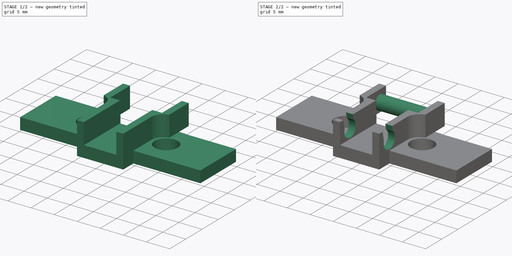
[diagram: build sequence overview — one tinted view per stage of 2, left to right]
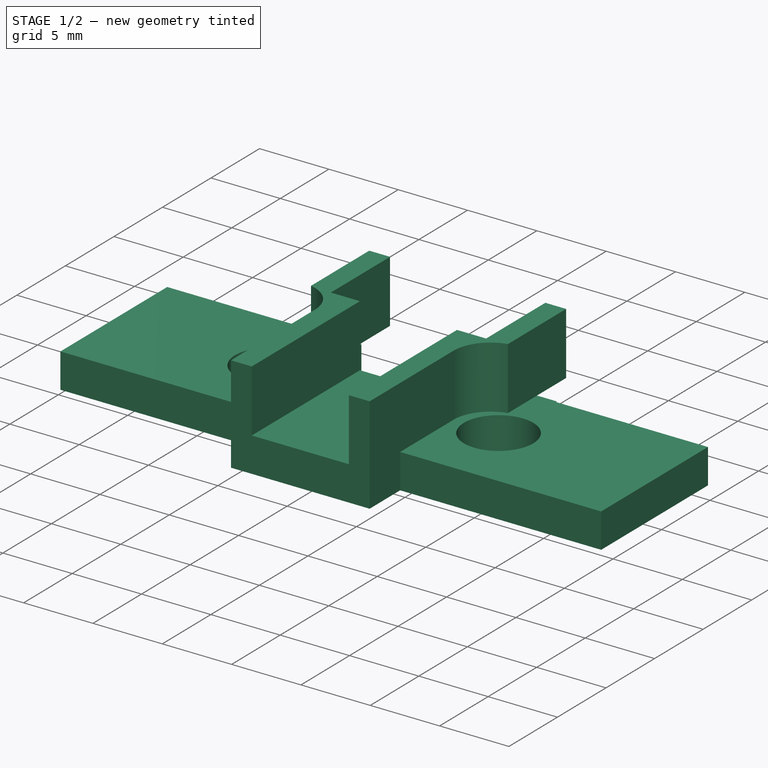
[diagram: stage 1 of 2 — iso view after this stage's code; geometry added in this stage tinted green]
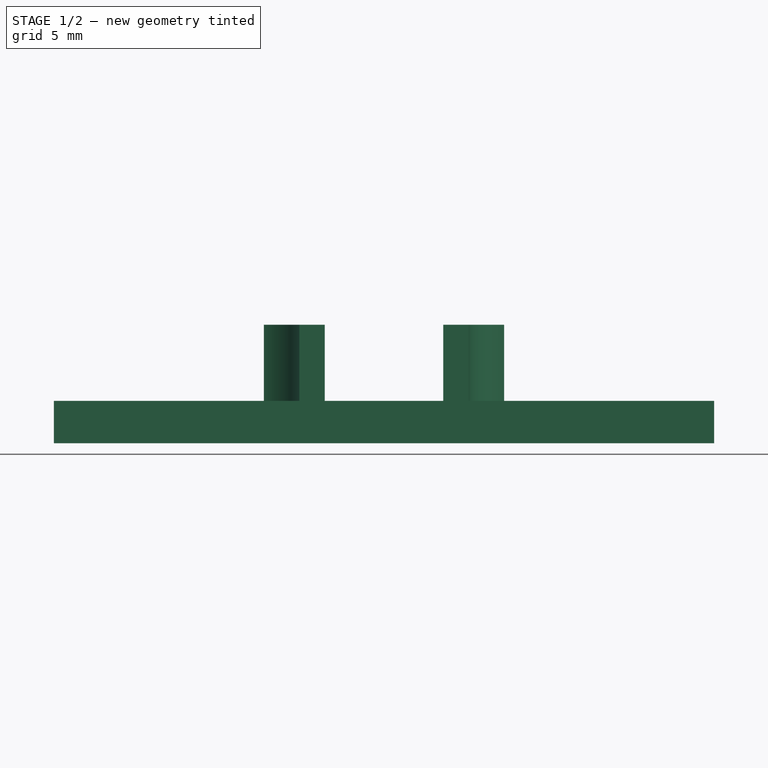
[diagram: stage 1 of 2 — front view after this stage's code; geometry added in this stage tinted green]
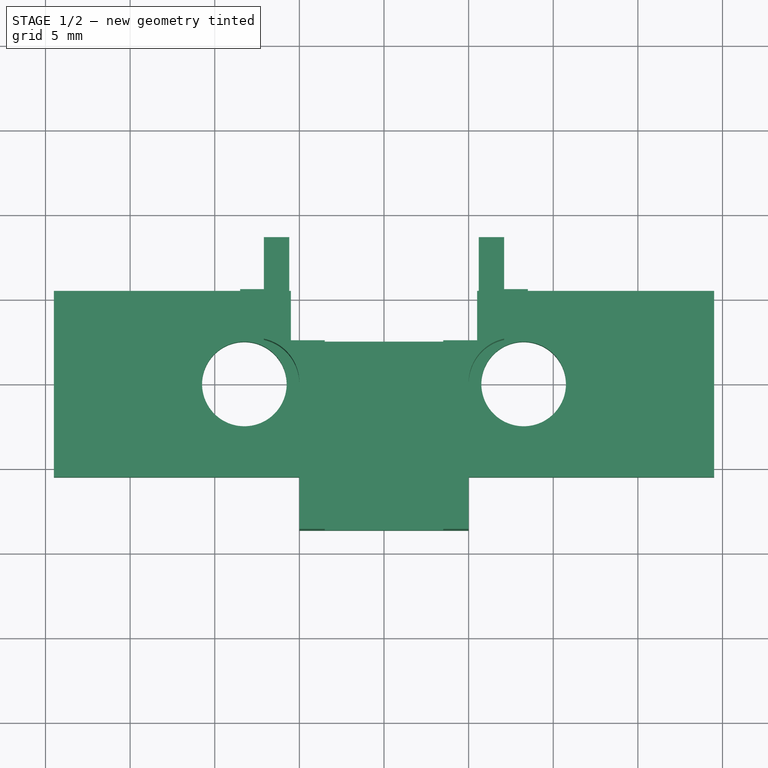
[diagram: stage 1 of 2 — top view after this stage's code; geometry added in this stage tinted green]
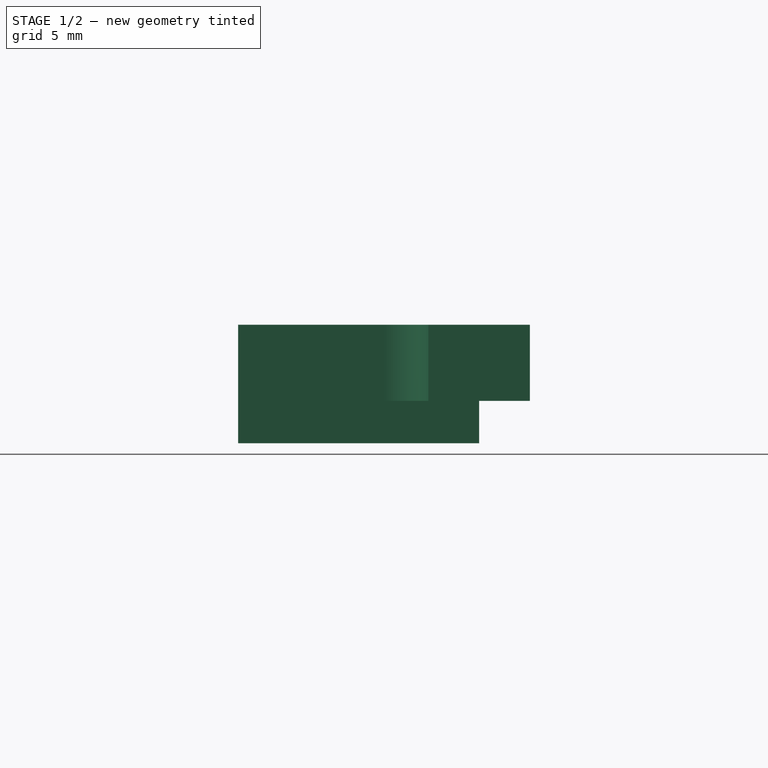
[diagram: stage 1 of 2 — right view after this stage's code; geometry added in this stage tinted green]
FCSTD DOCUMENT  (FreeCAD 0.18R4 (GitTag))
Label: новый трак
License: All rights reserved
LicenseURL: http://en.wikipedia.org/wiki/All_rights_reserved
objects: Sketcher::SketchObject×4, PartDesign::Pad×3, PartDesign::Pocket×1, PartDesign::Body×1
note: 13 computed .brp shape members not serialized (recipe doc carries the construction recipe); baked Part::Feature solids carry a one-line shape summary decoded from their .brp

FEATURE [Sketcher::SketchObject] Sketch
  MapMode = 5
  Support = -> [XY_Plane]
  sketch-geometry (22):
    g0: LineSegment StartX=19.5 StartY=5.5 StartZ=0 EndX=19.5 EndY=-5.5 EndZ=0
    g1: LineSegment StartX=-19.5 StartY=-5.5 StartZ=0 EndX=-19.5 EndY=5.5 EndZ=0
    g2: Circle CenterX=-8.25 CenterY=0 CenterZ=0 NormalX=0 NormalY=0 NormalZ=1 AngleXU=0 Radius=2.5
    g3: Circle CenterX=8.25 CenterY=0 CenterZ=0 NormalX=0 NormalY=0 NormalZ=1 AngleXU=0 Radius=2.5
    g4: LineSegment StartX=5.5 StartY=5.5 StartZ=0 EndX=5.5 EndY=2.5 EndZ=0
    g5: LineSegment StartX=5.5 StartY=2.5 StartZ=0 EndX=-5.5 EndY=2.5 EndZ=0
    g6: LineSegment StartX=-5.5 StartY=2.5 StartZ=0 EndX=-5.5 EndY=5.5 EndZ=0
    g7: LineSegment StartX=-19.5 StartY=-5.5 StartZ=0 EndX=-5 EndY=-5.5 EndZ=0
    g8: LineSegment StartX=19.5 StartY=-5.5 StartZ=0 EndX=5 EndY=-5.5 EndZ=0
    g9: LineSegment StartX=5 StartY=-5.5 StartZ=0 EndX=5 EndY=-8.64154 EndZ=0
    g10: LineSegment StartX=5 StartY=-8.64154 StartZ=0 EndX=-5 EndY=-8.64154 EndZ=0
    g11: LineSegment StartX=-5 StartY=-8.64154 StartZ=0 EndX=-5 EndY=-5.5 EndZ=0
    g12: LineSegment StartX=-8.5 StartY=5.6 StartZ=0 EndX=-5.6 EndY=5.6 EndZ=0
    g13: LineSegment StartX=-5.6 StartY=5.6 StartZ=0 EndX=-5.6 EndY=5.5 EndZ=0
    g14: LineSegment StartX=-8.5 StartY=5.5 StartZ=0 EndX=-8.5 EndY=5.6 EndZ=0
    g15: LineSegment StartX=5.6 StartY=5.6 StartZ=0 EndX=8.5 EndY=5.6 EndZ=0
    g16: LineSegment StartX=8.5 StartY=5.6 StartZ=0 EndX=8.5 EndY=5.5 EndZ=0
    g17: LineSegment StartX=5.6 StartY=5.5 StartZ=0 EndX=5.6 EndY=5.6 EndZ=0
    g18: LineSegment StartX=-19.5 StartY=5.5 StartZ=0 EndX=-8.5 EndY=5.5 EndZ=0
    g19: LineSegment StartX=-5.6 StartY=5.5 StartZ=0 EndX=-5.5 EndY=5.5 EndZ=0
    g20: LineSegment StartX=5.5 StartY=5.5 StartZ=0 EndX=5.6 EndY=5.5 EndZ=0
    g21: LineSegment StartX=8.5 StartY=5.5 StartZ=0 EndX=19.5 EndY=5.5 EndZ=0
  constraints (58):
    c: Vertical(g1)
    c: Symmetric(g0,g1,g-2)
    c: Radius(g3) = 2.5
    c: Equal(g3,g2)
    c: Symmetric(g2,g3,g-2)
    c: Distance(g3,g2) = 16.5
    c: PointOnObject(g3,g-1)
    c: Symmetric(g0,g0,g-1)
    c: Coincident(g4,g5)
    c: Coincident(g5,g6)
    c: Vertical(g4)
    c: Vertical(g6)
    c: Symmetric(g4,g5,g-2)
    c: Distance(g5) = 11
    c: Distance(g1,g0) = 39
    c: Coincident(g9,g10)
    c: Coincident(g10,g11)
    c: Vertical(g9)
    c: Vertical(g11)
    c: Parallel(g10,g8)
    c: Parallel(g8,g7)
    c: Coincident(g1,g7)
    c: Coincident(g7,g11)
    c: Coincident(g9,g8)
    c: Coincident(g8,g0)
    c: Distance(g10) = 10
    c: Symmetric(g8,g7,g-2)
    c: Coincident(g12,g13)
    c: Coincident(g14,g12)
    c: Horizontal(g12)
    c: Vertical(g13)
    c: Vertical(g14)
    c: Coincident(g15,g16)
    c: Coincident(g17,g15)
    c: Horizontal(g15)
    c: Vertical(g16)
    c: Vertical(g17)
    c: Parallel(g20,g15)
    c: Parallel(g19,g18)
    c: Coincident(g1,g18)
    c: Coincident(g18,g14)
    c: Coincident(g13,g19)
    c: Coincident(g19,g6)
    c: Coincident(g20,g4)
    c: Coincident(g20,g17)
    c: Coincident(g16,g21)
    c: Coincident(g21,g0)
    c: Parallel(g21,g15)
    c: Equal(g6,g4)
    c: Symmetric(g17,g13,g-2)
    c: Symmetric(g12,g15,g-2)
    c: Parallel(g15,g8)
    c: Distance(g1) = 11
    c: Distance(g20) = 0.1
    c: Distance(g21) = 11
    c: Distance(g16) = 0.1
    c: Distance(g6) = 3
    c: Distance(g17) = 0.1
FEATURE [PartDesign::Pad] Pad
  Length = 2.5
  Length2 = 100
  Profile = -> Sketch
  Type = 0
FEATURE [Sketcher::SketchObject] Sketch001
  MapMode = 5
  Placement = pos=(0,0,2.5) rot=(0,0,1;0rad)
  Support = -> [Pad]
  sketch-geometry (17):
    g0: LineSegment StartX=5.6 StartY=5.6 StartZ=0 EndX=5.6 EndY=8.6 EndZ=0
    g1: LineSegment StartX=5.6 StartY=8.6 StartZ=0 EndX=7.1 EndY=8.6 EndZ=0
    g2: LineSegment StartX=7.1 StartY=8.6 StartZ=0 EndX=7.1 EndY=2.6 EndZ=0
    g3: ArcOfCircle CenterX=7.65952 CenterY=0 CenterZ=0 NormalX=0 NormalY=0 NormalZ=1 AngleXU=0 Radius=2.65952 StartAngle=1.78277 EndAngle=3.14159
    g4: LineSegment StartX=5.6 StartY=5.6 StartZ=0 EndX=5.6 EndY=2.5 EndZ=0
    g5: LineSegment StartX=5.6 StartY=2.5 StartZ=0 EndX=3.5 EndY=2.5 EndZ=0
    g6: LineSegment StartX=3.5 StartY=2.5 StartZ=0 EndX=3.5 EndY=-8.64154 EndZ=0
    g7: LineSegment StartX=3.5 StartY=-8.64154 StartZ=0 EndX=5 EndY=-8.64154 EndZ=0
    g8: LineSegment StartX=5 StartY=-8.64154 StartZ=0 EndX=5 EndY=-3.4817e-12 EndZ=0
    g9: LineSegment StartX=-7.1 StartY=8.6 StartZ=0 EndX=-5.6 EndY=8.6 EndZ=0
    g10: LineSegment StartX=-5.6 StartY=8.6 StartZ=0 EndX=-5.6 EndY=2.5 EndZ=0
    g11: LineSegment StartX=-7.1 StartY=2.6 StartZ=0 EndX=-7.1 EndY=8.6 EndZ=0
    g12: LineSegment StartX=-3.5 StartY=2.5 StartZ=0 EndX=-3.5 EndY=-8.64154 EndZ=0
    g13: LineSegment StartX=-3.5 StartY=-8.64154 StartZ=0 EndX=-5 EndY=-8.64154 EndZ=0
    g14: LineSegment StartX=-5 StartY=-8.64154 StartZ=0 EndX=-5 EndY=-2.121e-12 EndZ=0
    g15: LineSegment StartX=-5.6 StartY=2.5 StartZ=0 EndX=-3.5 EndY=2.5 EndZ=0
    g16: ArcOfCircle CenterX=-7.65952 CenterY=0 CenterZ=0 NormalX=0 NormalY=0 NormalZ=1 AngleXU=0 Radius=2.65952 StartAngle=-7.976e-13 EndAngle=1.35883
  constraints (49):
    c: Coincident(g0,g1)
    c: Coincident(g1,g2)
    c: Coincident(g2,g3)
    c: Coincident(g0,g4)
    c: Coincident(g4,g5)
    c: Coincident(g5,g6)
    c: Coincident(g6,g7)
    c: Coincident(g7,g8)
    c: Coincident(g8,g3)
    c: Parallel(g0,g4)
    c: Parallel(g4,g2)
    c: Parallel(g2,g8)
    c: Parallel(g8,g6)
    c: Parallel(g1,g7)
    c: Parallel(g7,g5)
    c: Perpendicular(g6,g7)
    c: Horizontal(g5)
    c: Equal(g7,g1)
    c: Distance(g1) = 1.5
    c: DistanceX(g0) = 5.6
    c: DistanceY(g0) = 5.6
    c: Distance(g0) = 3
    c: DistanceX(g7) = 5
    c: DistanceY(g7) = -8.64154
    c: DistanceY(g4,g2) = 0.1
    c: DistanceY(g5) = 2.5
    c: DistanceY(g3,g3) = 0
    c: PointOnObject(g3,g-1)
    c: Coincident(g9,g10)
    c: Coincident(g11,g9)
    c: Horizontal(g9)
    c: Vertical(g10)
    c: Vertical(g11)
    c: Coincident(g12,g13)
    c: Coincident(g13,g14)
    c: Vertical(g12)
    c: Coincident(g10,g15)
    c: Coincident(g12,g15)
    c: Coincident(g16,g14)
    c: Coincident(g16,g11)
    c: Symmetric(g6,g12,g-2)
    c: Symmetric(g7,g13,g-2)
    c: Symmetric(g14,g3,g-2)
    c: Symmetric(g11,g2,g-2)
    c: Parallel(g5,g15)
    c: Equal(g5,g15)
    c: Equal(g12,g6)
    c: DistanceY(g-1,g16) = 0
    c: Equal(g11,g2)
FEATURE [PartDesign::Pad] Pad001
  BaseFeature = -> Pad
  Length = 4.5
  Length2 = 100
  Profile = -> Sketch001
  Type = 0
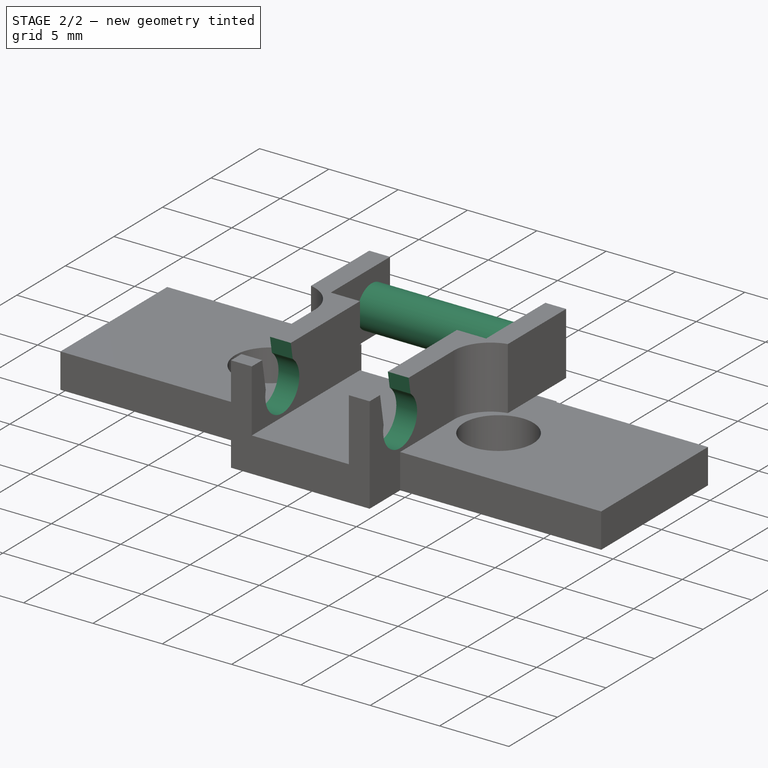
[diagram: stage 2 of 2 — iso view after this stage's code; geometry added in this stage tinted green]
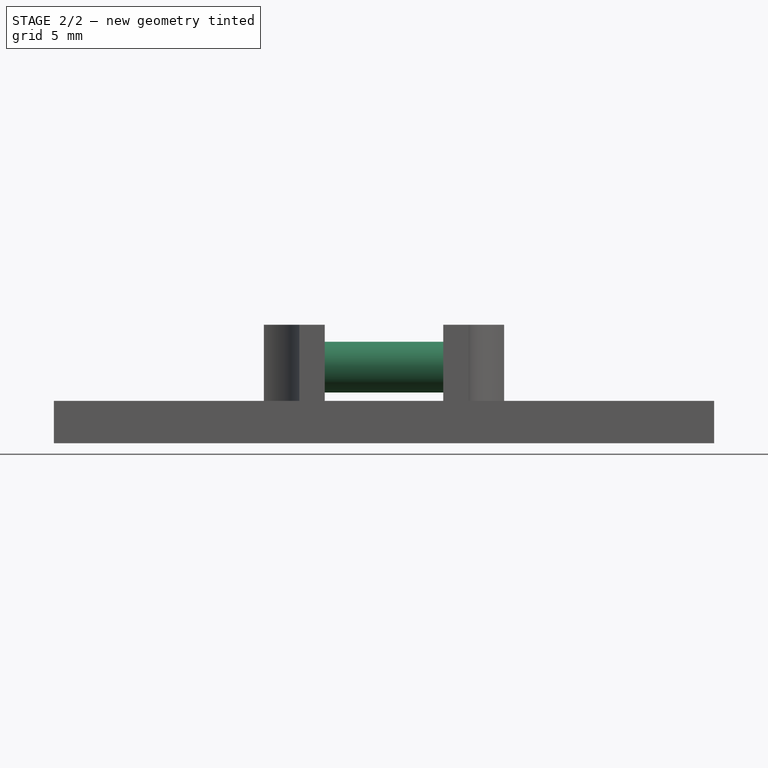
[diagram: stage 2 of 2 — front view after this stage's code; geometry added in this stage tinted green]
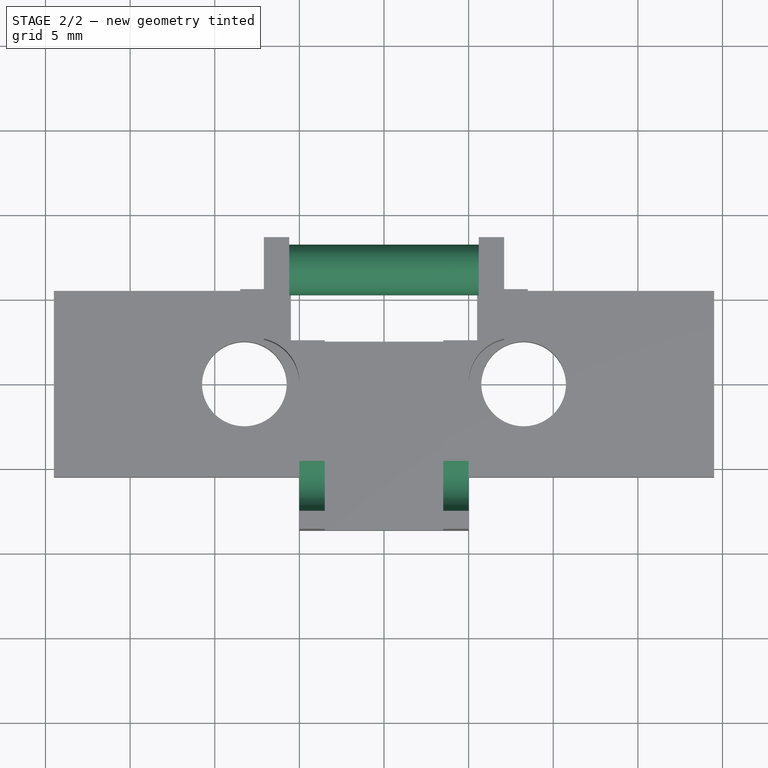
[diagram: stage 2 of 2 — top view after this stage's code; geometry added in this stage tinted green]
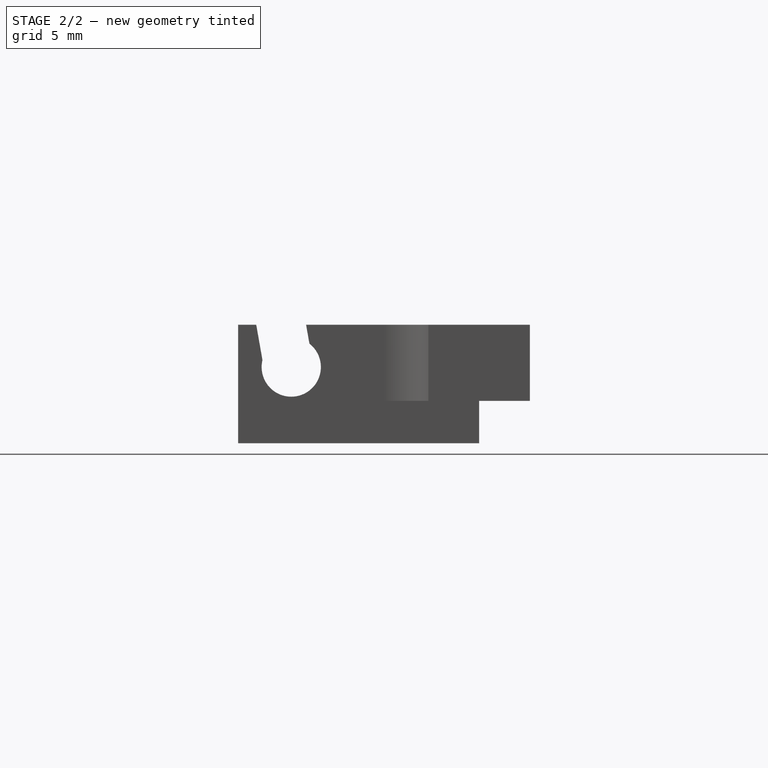
[diagram: stage 2 of 2 — right view after this stage's code; geometry added in this stage tinted green]
FEATURE [Sketcher::SketchObject] Sketch002
  MapMode = 5
  Placement = pos=(7.1,-6.22913e-11,0) rot=(0.57735,0.57735,0.57735;2.0944rad)
  Support = -> [Pad001]
  sketch-geometry (1):
    g0: Circle CenterX=6.7 CenterY=4.5 CenterZ=0 NormalX=0 NormalY=0 NormalZ=1 AngleXU=0 Radius=1.5
  constraints (3):
    c: DistanceX(g0) = 6.7
    c: DistanceY(g-1,g0) = 4.5
    c: Diameter(g0) = 3
FEATURE [PartDesign::Pad] Pad002
  BaseFeature = -> Pad001
  Length = 14.2
  Length2 = 100
  Profile = -> Sketch002
  Reversed = true
  Type = 0
FEATURE [Sketcher::SketchObject] Sketch003
  MapMode = 5
  Placement = pos=(-5,-1.274e-13,0) rot=(0.57735,-0.57735,-0.57735;2.0944rad)
  Support = -> [Pad002]
  sketch-geometry (4):
    g0: ArcOfCircle CenterX=5.5 CenterY=4.5 CenterZ=0 NormalX=0 NormalY=0 NormalZ=1 AngleXU=0 Radius=1.75 StartAngle=2.23115 EndAngle=6.52165
    g1: LineSegment StartX=7.20048 StartY=4.91336 StartZ=0 EndX=7.65594 EndY=7.49642 EndZ=0
    g2: LineSegment StartX=4.8 StartY=8 StartZ=0 EndX=4.42656 EndY=5.88211 EndZ=0
    g3: LineSegment StartX=4.8 StartY=8 StartZ=0 EndX=7.65594 EndY=7.49642 EndZ=0
  constraints (13):
    c: Coincident(g3,g1)
    c: Coincident(g2,g3)
    c: Coincident(g0,g2)
    c: Coincident(g0,g1)
    c: DistanceX(g0) = 5.5
    c: DistanceY(g0) = 4.5
    c: Diameter(g0) = 3.5
    c: Parallel(g2,g1)
    c: Perpendicular(g1,g3)
    c: Angle(g2,g-1) = 1.74533
    c: Distance(g3) = 2.9
    c: DistanceX(g2) = 4.8
    c: DistanceY(g2) = 8
FEATURE [PartDesign::Pocket] Pocket
  BaseFeature = -> Pad002
  Length = 10
  Length2 = 100
  Profile = -> Sketch003
  Type = 0
FEATURE [PartDesign::Body] Body
  Group = -> [Sketch,Pad,Sketch001,Pad001,Sketch002,Pad002,Sketch003,Pocket]
  Origin = -> Origin
  Tip = -> Pocket
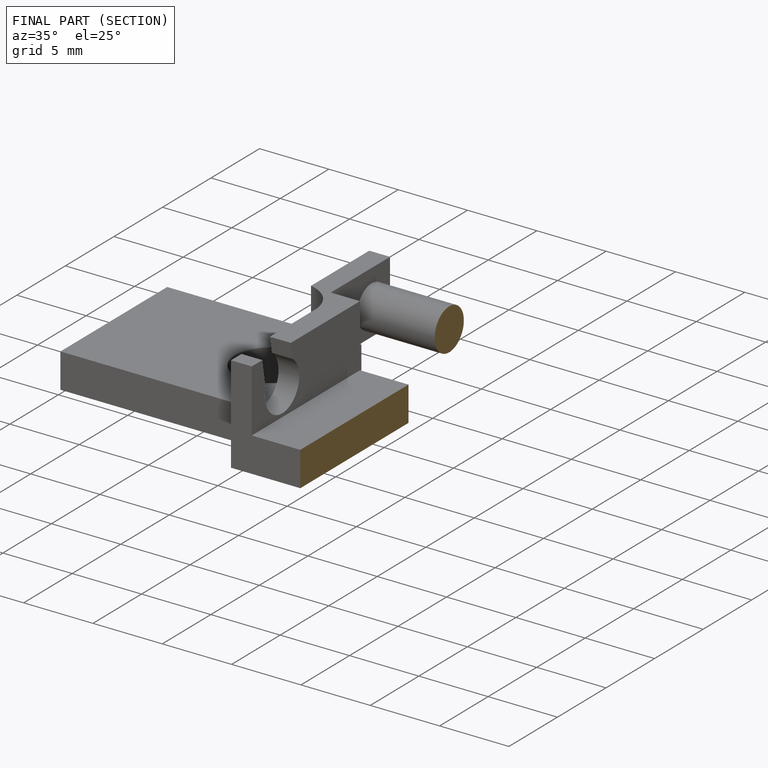
[diagram: finished part — half-section view (interior)]
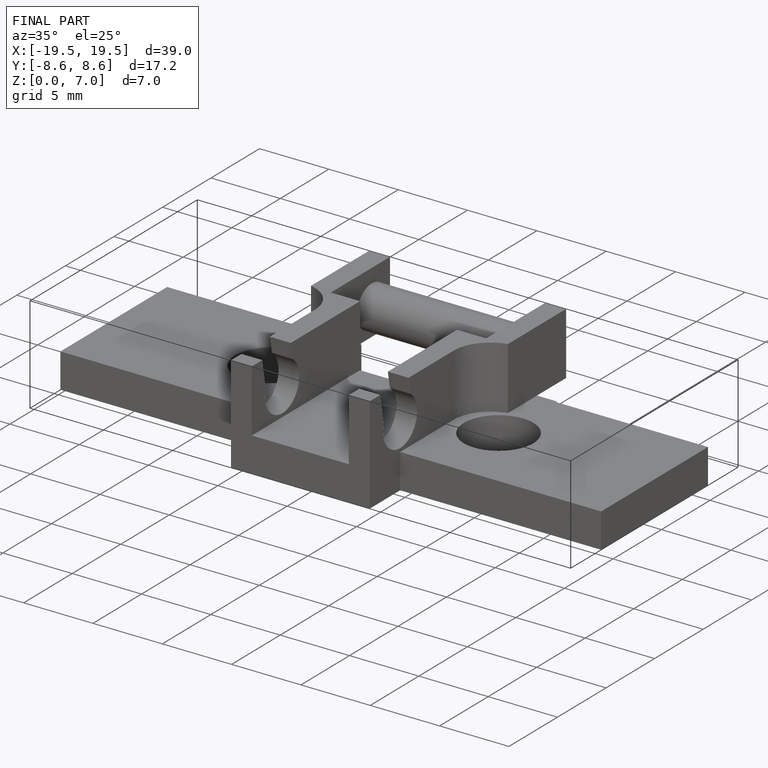
[diagram: finished part — iso view with bounding-box wireframe]
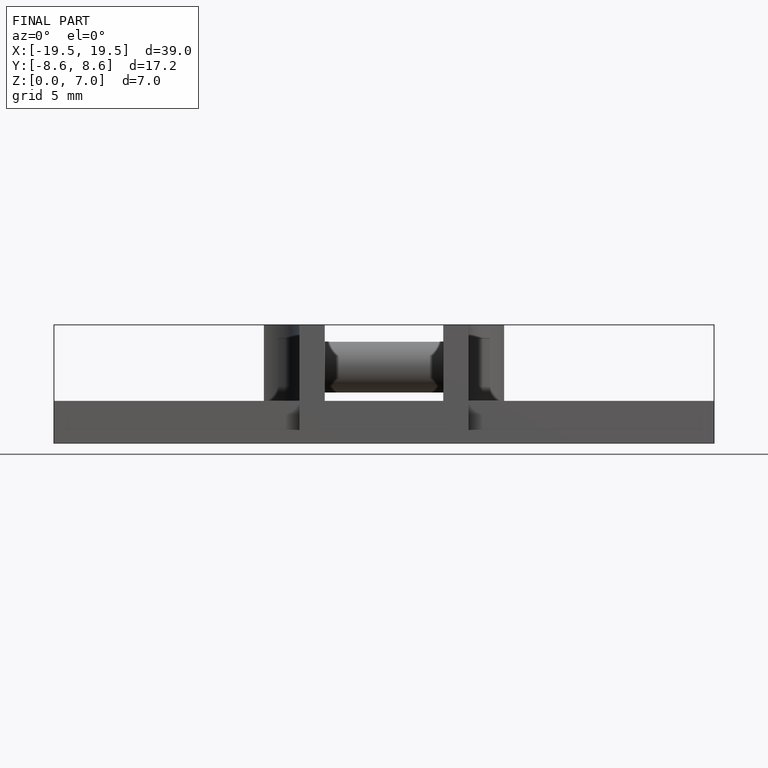
[diagram: finished part — front view with bounding-box wireframe]
